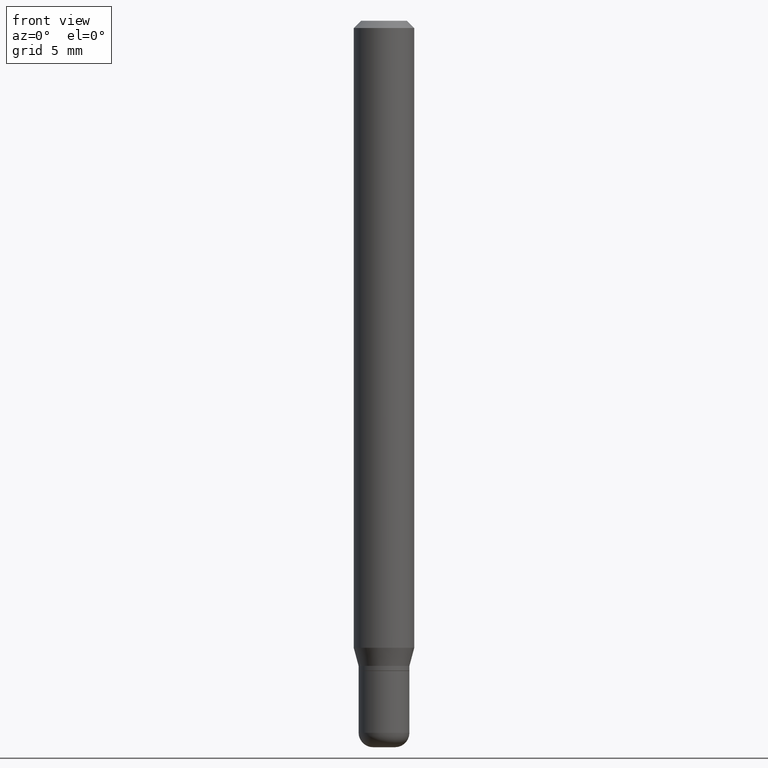
[diagram: clean part render]
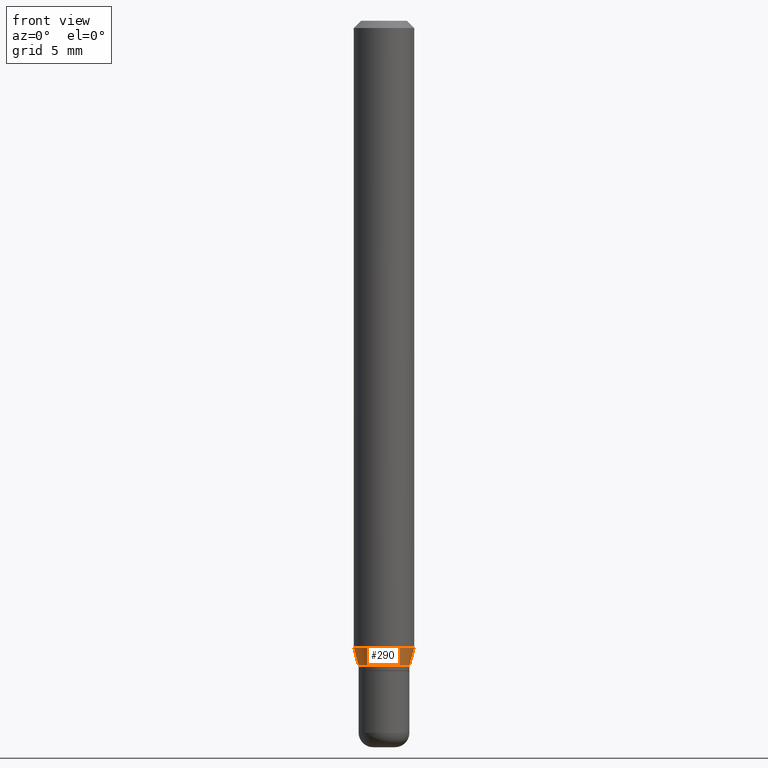
[diagram: same view with one face highlighted and labeled with its STEP entity id]
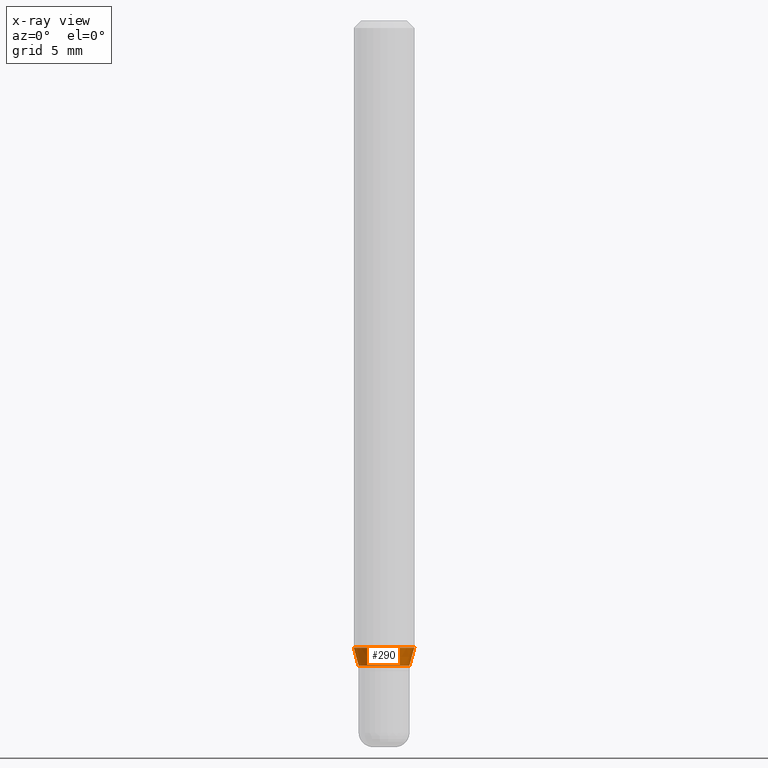
[diagram: x-ray of the same camera — body ghosted, the highlighted face saturated]
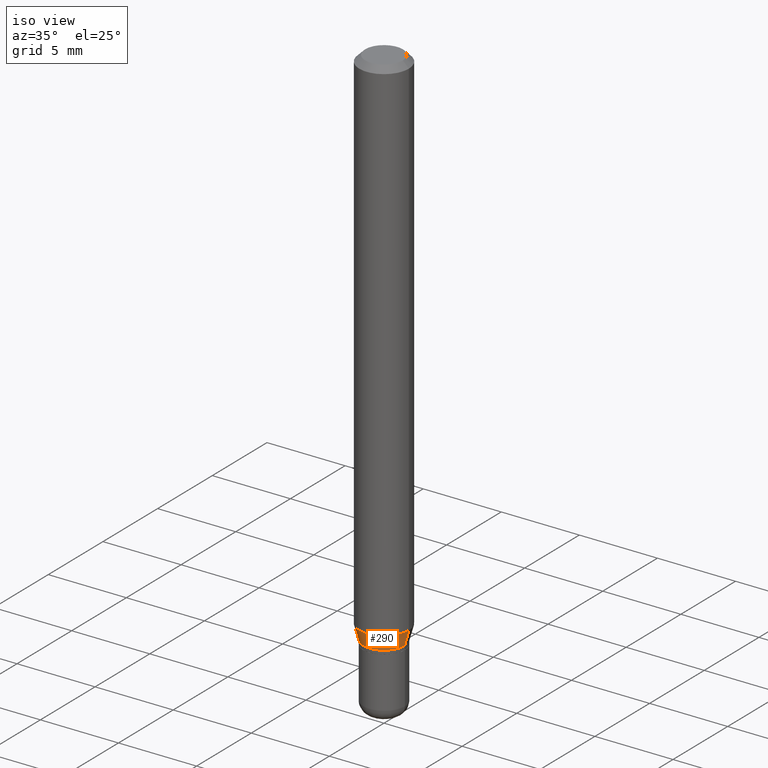
[diagram: same view with one face highlighted and labeled with its STEP entity id]
A machine part, front view. The second image highlights one B-rep face of the part: STEP entity #290.
The next image is the same camera in x-ray: the body ghosted, the highlighted face saturated — about 0% of this face is hidden behind the body in this view.
A second angle (iso view) of the same face is appended — the face is thin or edge-on in the first view.
In plain terms, the highlighted conical surface has half-angle 15 deg.
Its self-contained STEP definition (entity closure, byte-faithful):
#27 = VERTEX_POINT ( 'NONE', #316 ) ;
#45 = VECTOR ( 'NONE', #313, 39.37007874015748143 ) ;
#52 = AXIS2_PLACEMENT_3D ( 'NONE', #154, #469, #395 ) ;
#55 = VERTEX_POINT ( 'NONE', #157 ) ;
#58 = VECTOR ( 'NONE', #410, 39.37007874015748143 ) ;
#79 = DIRECTION ( 'NONE',  ( 1.000000000000000000, -6.982962677686262766E-15, 0.000000000000000000 ) ) ;
#101 = ORIENTED_EDGE ( 'NONE', *, *, #311, .T. ) ;
#114 = FACE_OUTER_BOUND ( 'NONE', #151, .T. ) ;
#149 = CARTESIAN_POINT ( 'NONE',  ( -0.06250000000000000000, -4.076260075986598044E-15, -1.294679491924312087 ) ) ;
#151 = EDGE_LOOP ( 'NONE', ( #181, #101, #166, #476 ) ) ;
#154 = CARTESIAN_POINT ( 'NONE',  ( 3.257364449838602633E-29, -4.650653143339071678E-15, -1.332000000000000517 ) ) ;
#157 = CARTESIAN_POINT ( 'NONE',  ( 0.06250000000000000000, -4.956784453192051541E-15, -1.294679491924312087 ) ) ;
#166 = ORIENTED_EDGE ( 'NONE', *, *, #354, .T. ) ;
#177 = EDGE_CURVE ( 'NONE', #27, #305, #329, .T. ) ;
#181 = ORIENTED_EDGE ( 'NONE', *, *, #177, .F. ) ;
#191 = DIRECTION ( 'NONE',  ( -2.445468806185136597E-29, 3.491481338843145583E-15, 1.000000000000000000 ) ) ;
#213 = CIRCLE ( 'NONE', #355, 0.06250000000000000000 ) ;
#225 = CARTESIAN_POINT ( 'NONE',  ( -0.05250000000000007438, -4.277618207065018355E-15, -1.332000000000000517 ) ) ;
#251 = CARTESIAN_POINT ( 'NONE',  ( 0.05250000000000007438, -5.017258683917600838E-15, -1.332000000000000517 ) ) ;
#262 = AXIS2_PLACEMENT_3D ( 'NONE', #269, #276, #480 ) ;
#269 = CARTESIAN_POINT ( 'NONE',  ( 3.257364449838602633E-29, -4.650653143339071678E-15, -1.332000000000000517 ) ) ;
#273 = LINE ( 'NONE', #390, #45 ) ;
#276 = DIRECTION ( 'NONE',  ( -2.445468806185136597E-29, 3.491481338843145583E-15, 1.000000000000000000 ) ) ;
#279 = CIRCLE ( 'NONE', #52, 0.05250000000000007438 ) ;
#282 = CARTESIAN_POINT ( 'NONE',  ( 3.166098311508526589E-29, -4.520349285836659871E-15, -1.294679491924312087 ) ) ;
#290 = ADVANCED_FACE ( 'NONE', ( #114 ), #458, .T. ) ;
#305 = VERTEX_POINT ( 'NONE', #149 ) ;
#311 = EDGE_CURVE ( 'NONE', #27, #468, #279, .T. ) ;
#313 = DIRECTION ( 'NONE',  ( 0.2588190451025214611, 1.565188264969620982E-15, 0.9659258262890679791 ) ) ;
#316 = CARTESIAN_POINT ( 'NONE',  ( -0.05250000000000007438, -4.176939141525808200E-15, -1.332000000000000517 ) ) ;
#329 = LINE ( 'NONE', #225, #58 ) ;
#354 = EDGE_CURVE ( 'NONE', #468, #55, #273, .T. ) ;
#355 = AXIS2_PLACEMENT_3D ( 'NONE', #282, #191, #79 ) ;
#390 = CARTESIAN_POINT ( 'NONE',  ( 0.05250000000000007438, -5.017258683917600838E-15, -1.332000000000000517 ) ) ;
#395 = DIRECTION ( 'NONE',  ( 1.000000000000000000, -6.982962677686258033E-15, 0.000000000000000000 ) ) ;
#399 = EDGE_CURVE ( 'NONE', #305, #55, #213, .T. ) ;
#410 = DIRECTION ( 'NONE',  ( -0.2588190451025214611, 5.211531920934550253E-15, 0.9659258262890679791 ) ) ;
#458 = CONICAL_SURFACE ( 'NONE', #262, 0.05250000000000007438, 0.2617993877991501850 ) ;
#468 = VERTEX_POINT ( 'NONE', #251 ) ;
#469 = DIRECTION ( 'NONE',  ( -2.445468806185136597E-29, 3.491481338843145583E-15, 1.000000000000000000 ) ) ;
#476 = ORIENTED_EDGE ( 'NONE', *, *, #399, .F. ) ;
#480 = DIRECTION ( 'NONE',  ( 1.000000000000000000, -6.982962677686258033E-15, 0.000000000000000000 ) ) ;